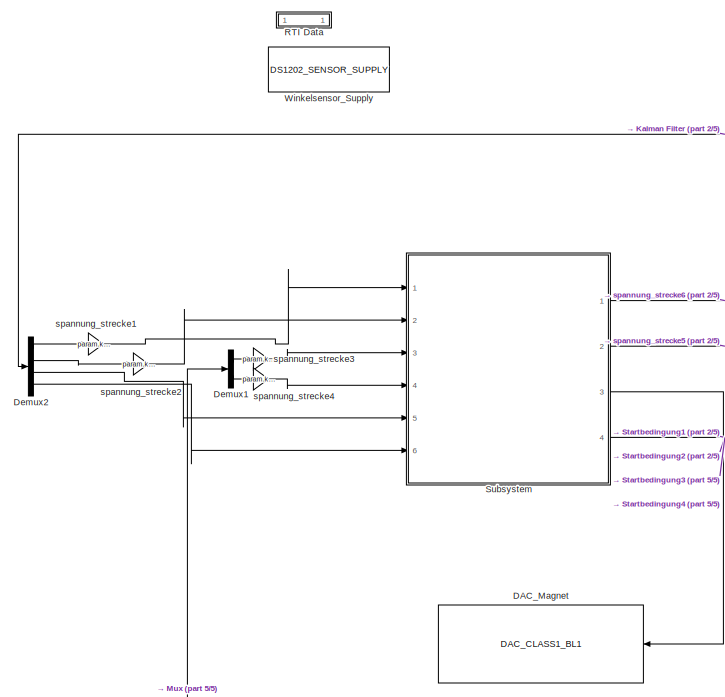
[diagram: root canvas - part 1/5, top left region]
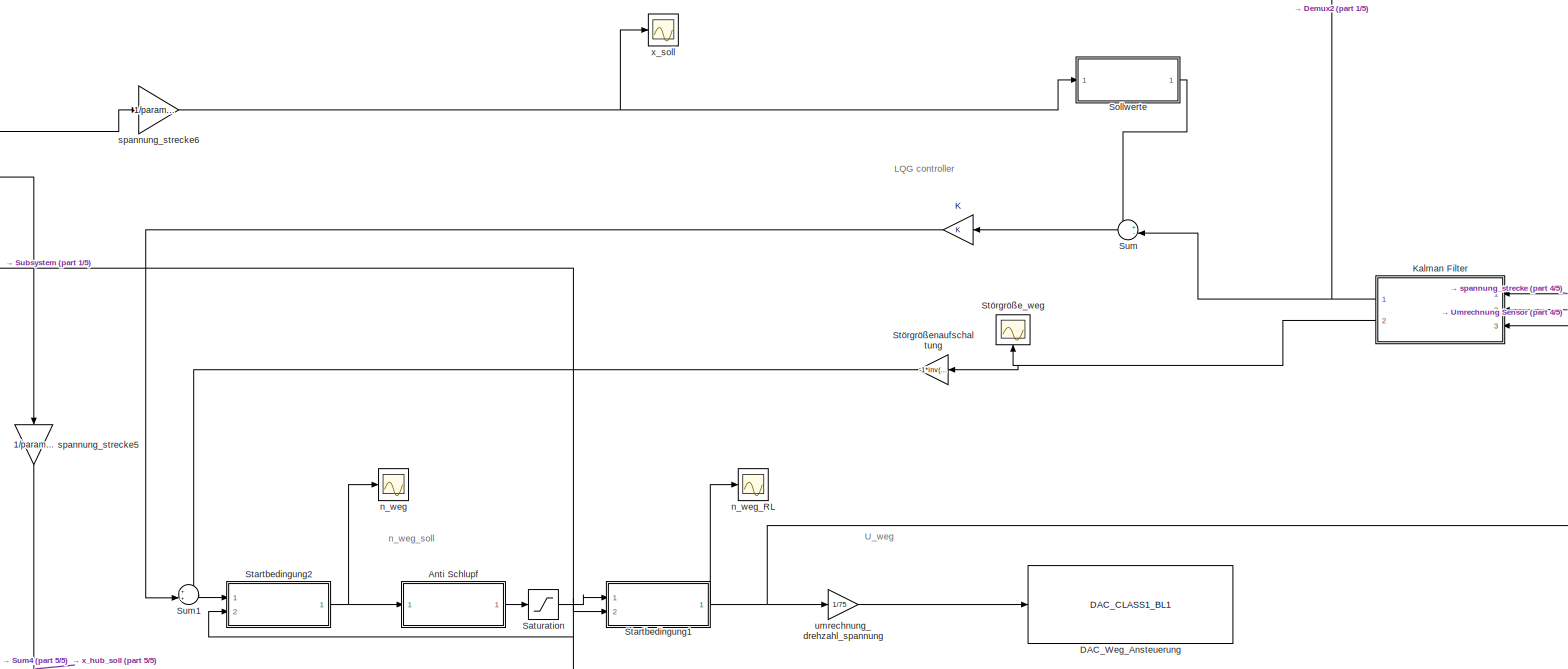
[diagram: root canvas - part 2/5, top center region]
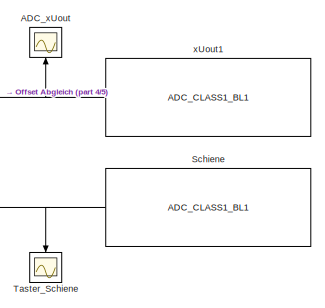
[diagram: root canvas - part 3/5, top right region]
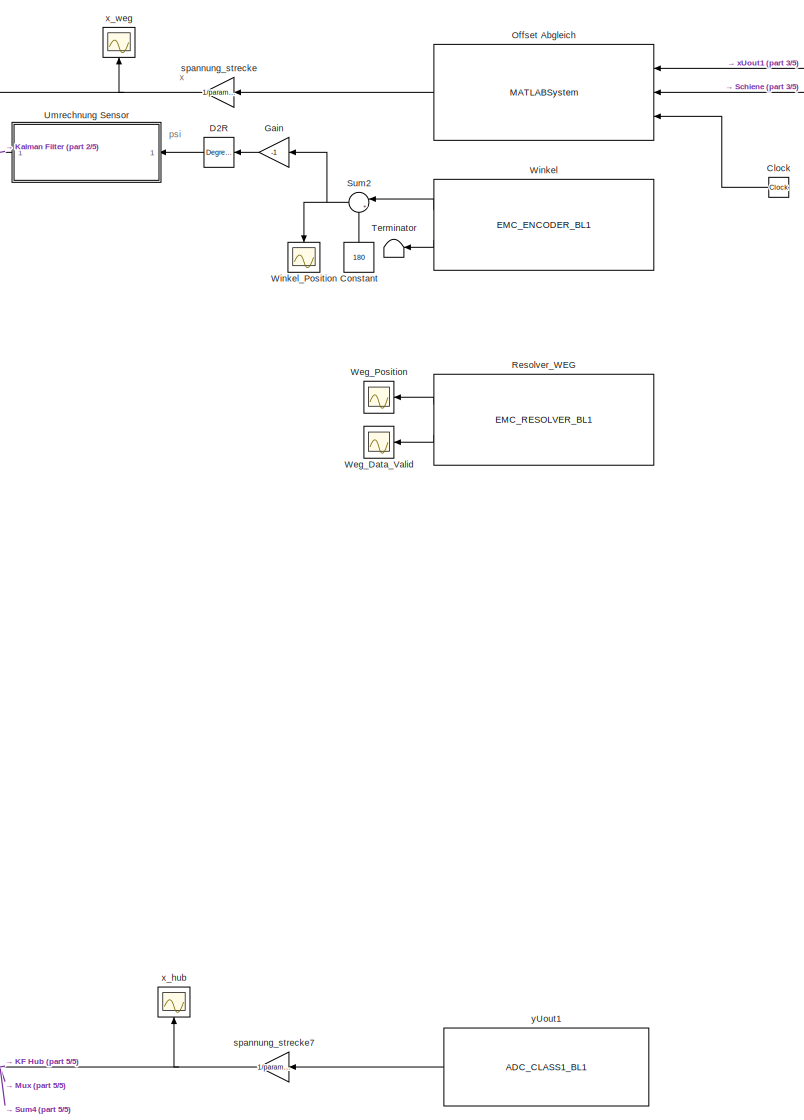
[diagram: root canvas - part 4/5, middle right region]
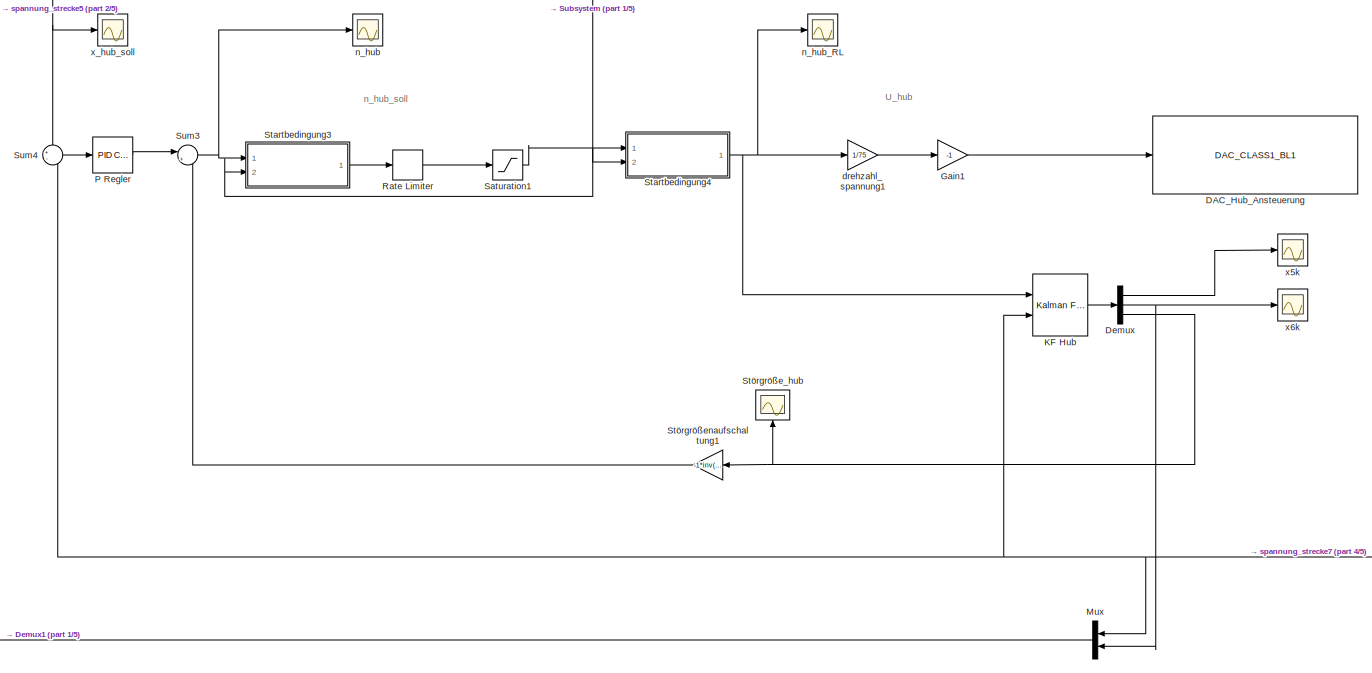
[diagram: root canvas - part 5/5, bottom center region]
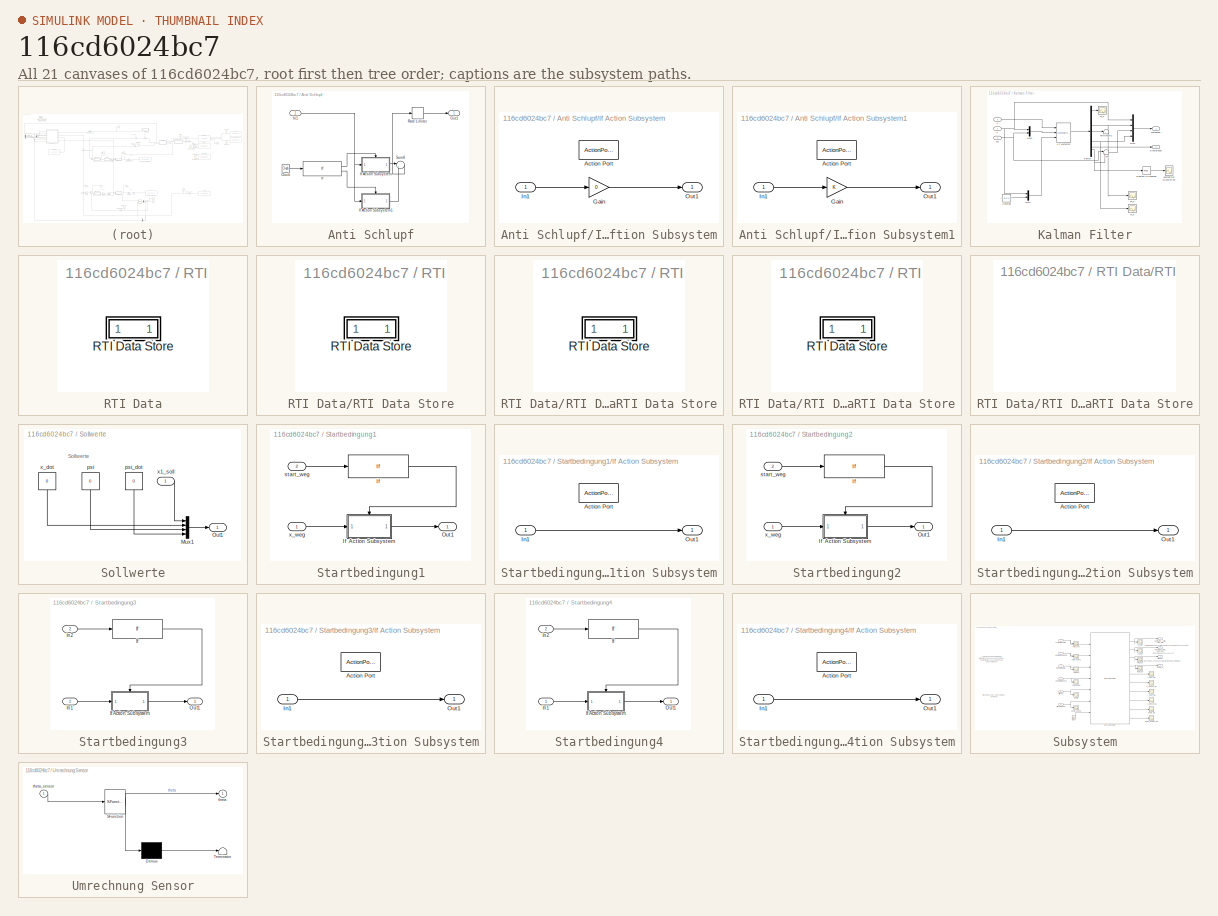
[diagram: thumbnail index - all 21 canvases of the model, root first then tree order]
MODEL slx_116cd6024bc7
KIND model
CONFIG AbsTol = auto
CONFIG EnableMultiTasking = off
CONFIG FixedStep = 0.001
CONFIG MaxStep = auto
CONFIG MinStep = auto
CONFIG PostLoadFcn = , if any(exist('dsrtsu_mdlpostloadfcn', 'file') == [2, 3, 6]), try dsrtsu_mdlpostloadfcn('Execute', bdroot); catch fprintf('Error in PostLoadFcn (dsrtsu_mdlpostloadfcn) for model "%s":\n %s\n', bdroot, lasterr); end, end, \n
CONFIG RelTol = 1e-3
CONFIG SampleTimeConstraint = Unconstrained
CONFIG Solver = ode1
CONFIG SolverName = ode1
CONFIG StartTime = 0.0
CONFIG StopTime = Inf
BLOCK [Scope] ADC_xUout
  NumInputPorts = 1
  Ports = [1]
  ScopeSpecificationString = C++SS(StrPVP('SaveName','ScopeData4'),StrPVP('LimitDataPoints','on'),StrPVP('DataFormat','Array'),StrPVP('Decimation','1'),StrPVP('BlockParamSampleInput','off'),StrPVP('SaveName','ScopeData1'),StrPVP('SaveName','ScopeData1'))
BLOCK [SubSystem] Anti Schlupf
  Ports = [1, 1]
  RequestExecContextInheritance = off
  Variant = off
BLOCK [Clock] Anti Schlupf/Clock
BLOCK [If] Anti Schlupf/If
  IfExpression = u1 < 0.01
  Ports = [1, 2]
BLOCK [SubSystem] Anti Schlupf/If Action Subsystem
  Ports = [1, 1, 0, 0, 0, 0, 0, 1]
  RequestExecContextInheritance = off
  TreatAsAtomicUnit = on
  Variant = off
BLOCK [ActionPort] Anti Schlupf/If Action Subsystem/Action Port
  ActionType = then
BLOCK [Gain] Anti Schlupf/If Action Subsystem/Gain
  Gain = 0
  OutDataTypeStr = Inherit: Inherit via internal rule
  ParamDataTypeStr = Inherit: Inherit via internal rule
  SaturateOnIntegerOverflow = off
BLOCK [Inport] Anti Schlupf/If Action Subsystem/In1
  IconDisplay = Port number
BLOCK [Outport] Anti Schlupf/If Action Subsystem/Out1
  IconDisplay = Port number
BLOCK [SubSystem] Anti Schlupf/If Action Subsystem1
  Ports = [1, 1, 0, 0, 0, 0, 0, 1]
  RequestExecContextInheritance = off
  TreatAsAtomicUnit = on
  Variant = off
BLOCK [ActionPort] Anti Schlupf/If Action Subsystem1/Action Port
  ActionType = else
BLOCK [Gain] Anti Schlupf/If Action Subsystem1/Gain
  OutDataTypeStr = Inherit: Inherit via internal rule
  ParamDataTypeStr = Inherit: Inherit via internal rule
  SaturateOnIntegerOverflow = off
BLOCK [Inport] Anti Schlupf/If Action Subsystem1/In1
  IconDisplay = Port number
BLOCK [Outport] Anti Schlupf/If Action Subsystem1/Out1
  IconDisplay = Port number
BLOCK [Inport] Anti Schlupf/In1
  IconDisplay = Port number
BLOCK [Outport] Anti Schlupf/Out1
  IconDisplay = Port number
BLOCK [RateLimiter] Anti Schlupf/Rate Limiter
  FallingSlewLimit = -9.57
  RisingSlewLimit = 9.57
  SampleTimeMode = inherited
BLOCK [Sum] Anti Schlupf/Sum8
  IconShape = round
  InputSameDT = off
  Inputs = |++
  OutDataTypeStr = Inherit: Inherit via internal rule
  Ports = [2, 1]
  SaturateOnIntegerOverflow = off
BLOCK [Clock] Clock
BLOCK [Constant] Constant
  Value = 180
BLOCK [Reference] D2R  REF=simulink_extras/Transformations/Degrees to
Radians
  Ports = [1, 1]
  SourceBlock = simulink_extras/Transformations/Degrees to\nRadians
  SourceType = DegreesToRadians
BLOCK [Reference] DAC_Hub_Ansteuerung  REF=rti1202lib_dac_class1/DAC_CLASS1_BL1
  Ports = [1]
  SourceBlock = rti1202lib_dac_class1/DAC_CLASS1_BL1
  SourceType = RTI
BLOCK [Reference] DAC_Magnet  REF=rti1202lib_dac_class1/DAC_CLASS1_BL1
  Ports = [1]
  SourceBlock = rti1202lib_dac_class1/DAC_CLASS1_BL1
  SourceType = RTI
BLOCK [Reference] DAC_Weg_Ansteuerung  REF=rti1202lib_dac_class1/DAC_CLASS1_BL1
  Ports = [1]
  SourceBlock = rti1202lib_dac_class1/DAC_CLASS1_BL1
  SourceType = RTI
BLOCK [Demux] Demux
  DisplayOption = bar
  Outputs = 3
  Ports = [1, 3]
BLOCK [Demux] Demux1
  DisplayOption = bar
  Outputs = 2
  Ports = [1, 2]
BLOCK [Demux] Demux2
  DisplayOption = bar
  Ports = [1, 4]
BLOCK [Gain] Gain
  Gain = -1
  OutDataTypeStr = Inherit: Inherit via internal rule
  ParamDataTypeStr = Inherit: Inherit via internal rule
  SaturateOnIntegerOverflow = off
BLOCK [Gain] Gain1
  Gain = -1
  OutDataTypeStr = Inherit: Inherit via internal rule
  ParamDataTypeStr = Inherit: Inherit via internal rule
  SaturateOnIntegerOverflow = off
BLOCK [Gain] K
  Gain = K
  Multiplication = Matrix(K*u) (u vector)
  OutDataTypeStr = Inherit: Inherit via internal rule
  ParamDataTypeStr = Inherit: Inherit via internal rule
  SaturateOnIntegerOverflow = off
BLOCK [Reference] KF Hub  REF=ctrlSharedLib/Kalman Filter
  Ports = [2, 1]
  SourceBlock = ctrlSharedLib/Kalman Filter
  SourceType = ctrlKalmanFilter
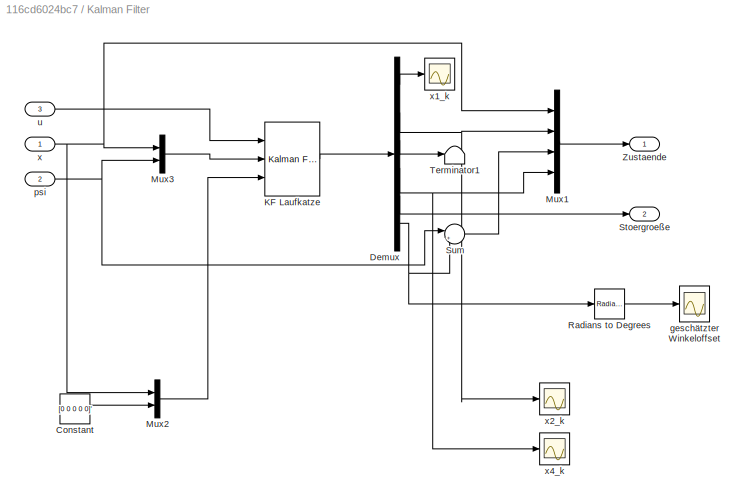
BLOCK [SubSystem] Kalman Filter
  Ports = [3, 2]
  RequestExecContextInheritance = off
  Variant = off
BLOCK [Constant] Kalman Filter/Constant
  Value = [0 0 0 0 0]'
BLOCK [Demux] Kalman Filter/Demux
  DisplayOption = bar
  Outputs = 6
  Ports = [1, 6]
BLOCK [Reference] Kalman Filter/KF Laufkatze  REF=ctrlSharedLib/Kalman Filter
  Ports = [3, 1]
  SourceBlock = ctrlSharedLib/Kalman Filter
  SourceType = ctrlKalmanFilter
BLOCK [Mux] Kalman Filter/Mux1
  DisplayOption = bar
  Ports = [4, 1]
BLOCK [Mux] Kalman Filter/Mux2
  DisplayOption = bar
  Inputs = 2
  Ports = [2, 1]
BLOCK [Mux] Kalman Filter/Mux3
  DisplayOption = bar
  Inputs = 2
  Ports = [2, 1]
BLOCK [Reference] Kalman Filter/Radians to Degrees  REF=simulink_extras/Transformations/Radians
to Degrees
  Ports = [1, 1]
  SourceBlock = simulink_extras/Transformations/Radians\nto Degrees
  SourceType = RadiansToDegrees
BLOCK [Outport] Kalman Filter/Stoergroeße
  IconDisplay = Port number
  Port = 2
BLOCK [Sum] Kalman Filter/Sum
  IconShape = round
  InputSameDT = off
  Inputs = |+-
  OutDataTypeStr = Inherit: Inherit via internal rule
  Ports = [2, 1]
  SaturateOnIntegerOverflow = off
BLOCK [Terminator] Kalman Filter/Terminator1
BLOCK [Outport] Kalman Filter/Zustaende
  IconDisplay = Port number
BLOCK [Scope] Kalman Filter/geschätzter Winkeloffset
  NumInputPorts = 1
  Ports = [1]
  ScopeSpecificationString = Simulink.scopes.TimeScopeBlockCfg('CurrentConfiguration', extmgr.ConfigurationSet(extmgr.Configuration('Core','General UI',true),extmgr.Configuration('Core','Source UI',true),extmgr.Configuration('Sources','WiredSimulink',true,'DataLoggingVariableName','ScopeData1'),extmgr.Configuration('Visuals','Time Domain',true,'SerializedDisplays',{struct('MinYLimReal','-0.34725','MaxYLimReal','3.12526','YLab...<+1429ch>
BLOCK [Inport] Kalman Filter/psi
  IconDisplay = Port number
  Port = 2
BLOCK [Inport] Kalman Filter/u
  IconDisplay = Port number
  Port = 3
BLOCK [Inport] Kalman Filter/x
  IconDisplay = Port number
BLOCK [Scope] Kalman Filter/x1_k 
  NumInputPorts = 1
  Ports = [1]
  ScopeSpecificationString = C++SS(StrPVP('SaveName','ScopeData1'),StrPVP('LimitDataPoints','on'),StrPVP('DataFormat','Array'),StrPVP('Decimation','1'),StrPVP('BlockParamSampleInput','off'))
BLOCK [Scope] Kalman Filter/x2_k
  NumInputPorts = 1
  Ports = [1]
  ScopeSpecificationString = C++SS(StrPVP('SaveName','ScopeData1'),StrPVP('LimitDataPoints','on'),StrPVP('DataFormat','Array'),StrPVP('Decimation','1'),StrPVP('BlockParamSampleInput','off'),StrPVP('SaveName','ScopeData1'))
BLOCK [Scope] Kalman Filter/x4_k
  NumInputPorts = 1
  Ports = [1]
  ScopeSpecificationString = C++SS(StrPVP('SaveName','ScopeData1'),StrPVP('LimitDataPoints','on'),StrPVP('DataFormat','Array'),StrPVP('Decimation','1'),StrPVP('BlockParamSampleInput','off'),StrPVP('SaveName','ScopeData2'))
BLOCK [Mux] Mux
  DisplayOption = bar
  Inputs = 2
  Ports = [2, 1]
BLOCK [MATLABSystem] Offset Abgleich
  MaskDisplay = disp('offset_abgleich');\nport_label('input',1,'input');\nport_label('input',2,'taster');\nport_label('input',3,'clock');\nport_label('output',1,'output');
  MaskType = offset_abgleich
  Ports = [3, 1]
  SimulateUsing = Code generation
  System = offset_abgleich
BLOCK [Reference] P Regler  REF=simulink/Continuous/PID Controller
  Ports = [1, 1]
  SourceBlock = simulink/Continuous/PID Controller
  SourceType = PID 1dof
BLOCK [SubSystem] RTI Data
  CopyFcn = if exist('rtidc'), try,  rtidc('DataHostBlockClbCopy', gcbh); catch, disp(['Warning: ''CopyFcn'' for RTI Data block failed: ' lasterr]); end, end,
  DeleteFcn = if exist('rtidc'), try,  rtidc('DataHostBlockClbDelete', gcbh); catch, disp(['Warning: ''DeleteFcn'' for RTI Data block failed: ' lasterr]); end, end,
  LoadFcn = if exist('rtidc'), try,  rtidc('DataHostBlockClbLoad', gcbh); catch, disp(['Warning: ''LoadFcn'' for RTI Data block failed: ' lasterr]); end, end,
  ModelCloseFcn = if exist('rtidc'), try,  rtidc('DataHostBlockClbModelClose', gcbh); catch, disp(['Warning: ''ModelCloseFcn'' for RTI Data block failed: ' lasterr]); end, end,
  NameChangeFcn = if exist('rtidc'), try,  rtidc('DataHostBlockClbNameChange', gcbh); catch, disp(['Warning: ''NameChangeFcn'' for RTI Data block failed: ' lasterr]); end, end,
  Ports = []
  PostSaveFcn = if exist('rtidc'), try,  rtidc('DataHostBlockClbPostSave', gcbh); catch, disp(['Warning: ''PostSaveFcn'' for RTI Data block failed: ' lasterr]); end, end,
  PreSaveFcn = if exist('rtidc'), try,  rtidc('DataHostBlockClbPreSave', gcbh); catch, disp(['Warning: ''PreSaveFcn'' for RTI Data block failed: ' lasterr]); end, end,
  RequestExecContextInheritance = off
  Tag = struct('RTIDataServer',struct('RTIDataServerVs','2','RTIModelDescription','struct(''main'',''ModellAnlage'',''sub'','''',''isMp'',0)'))
  Variant = off
BLOCK [SubSystem] RTI Data/RTI Data Store
  Ports = []
  RequestExecContextInheritance = off
  Tag = struct('private',struct('version',struct('dsVer',uint32(2),'dsVerCreation',uint32(2),'RTI',struct('ver','7.7','type','RTI1202')),'access',struct('type','Model','isPerm',1,'created',['24-Nov-2020 10:16:32'],'modified',['09-Feb-2021 15:11:09'],'location','')),'public',struct('main',struct('data',[]),'sub',struct('name',{{'ModellAnlage'}},'data',{{struct('TH',struct('thTaskInfo',struct('taskType',{'T...<+889ch>
  Variant = off
BLOCK [SubSystem] RTI Data/RTI Data Store/RTI Data Store
  Ports = []
  RequestExecContextInheritance = off
  Variant = off
BLOCK [SubSystem] RTI Data/RTI Data Store/RTI Data Store/RTI Data Store
  Ports = []
  RequestExecContextInheritance = off
  Variant = off
BLOCK [SubSystem] RTI Data/RTI Data Store/RTI Data Store/RTI Data Store/RTI Data Store
  Ports = []
  RequestExecContextInheritance = off
  Variant = off
BLOCK [RateLimiter] Rate Limiter
  FallingSlewLimit = -17
  RisingSlewLimit = 17
  SampleTimeMode = inherited
BLOCK [Reference] Resolver_WEG  REF=rtiemclib/EMC_RESOLVER_BL1
  Ports = [0, 2]
  SourceBlock = rtiemclib/EMC_RESOLVER_BL1
  SourceType = RTI
BLOCK [Saturate] Saturation
  InputPortMap = u0
  LowerLimit = -75
  Ports = [1, 1]
  UpperLimit = 75
BLOCK [Saturate] Saturation1
  InputPortMap = u0
  LowerLimit = -75
  Ports = [1, 1]
  UpperLimit = 75
BLOCK [Reference] Schiene  REF=rti1202lib_adc_class1/ADC_CLASS1_BL1
  Ports = [0, 1]
  SourceBlock = rti1202lib_adc_class1/ADC_CLASS1_BL1
  SourceType = RTI
BLOCK [SubSystem] Sollwerte
  Ports = [1, 1]
  RequestExecContextInheritance = off
  Variant = off
BLOCK [Mux] Sollwerte/Mux1
  DisplayOption = bar
  Ports = [4, 1]
BLOCK [Outport] Sollwerte/Out1
  IconDisplay = Port number
BLOCK [Constant] Sollwerte/psi
  Value = 0
BLOCK [Constant] Sollwerte/psi_dot
  Value = 0
BLOCK [Inport] Sollwerte/x1_soll
  IconDisplay = Port number
BLOCK [Constant] Sollwerte/x_dot
  Value = 0
BLOCK [SubSystem] Startbedingung1
  Ports = [2, 1]
  RequestExecContextInheritance = off
  Variant = off
BLOCK [If] Startbedingung1/If
  IfExpression = u1 == 1
  Ports = [1, 1]
  ShowElse = off
BLOCK [SubSystem] Startbedingung1/If Action Subsystem
  Ports = [1, 1, 0, 0, 0, 0, 0, 1]
  RequestExecContextInheritance = off
  TreatAsAtomicUnit = on
  Variant = off
BLOCK [ActionPort] Startbedingung1/If Action Subsystem/Action Port
  ActionType = then
  InitializeStates = reset
  PropagateVarSize = During execution
BLOCK [Inport] Startbedingung1/If Action Subsystem/In1
  IconDisplay = Port number
BLOCK [Outport] Startbedingung1/If Action Subsystem/Out1
  IconDisplay = Port number
BLOCK [Outport] Startbedingung1/Out1
  IconDisplay = Port number
BLOCK [Inport] Startbedingung1/start_weg
  IconDisplay = Port number
  Port = 2
BLOCK [Inport] Startbedingung1/x_weg
  IconDisplay = Port number
BLOCK [SubSystem] Startbedingung2
  Ports = [2, 1]
  RequestExecContextInheritance = off
  Variant = off
BLOCK [If] Startbedingung2/If
  IfExpression = u1 == 1
  Ports = [1, 1]
  ShowElse = off
BLOCK [SubSystem] Startbedingung2/If Action Subsystem
  Ports = [1, 1, 0, 0, 0, 0, 0, 1]
  RequestExecContextInheritance = off
  TreatAsAtomicUnit = on
  Variant = off
BLOCK [ActionPort] Startbedingung2/If Action Subsystem/Action Port
  ActionType = then
  InitializeStates = reset
  PropagateVarSize = During execution
BLOCK [Inport] Startbedingung2/If Action Subsystem/In1
  IconDisplay = Port number
BLOCK [Outport] Startbedingung2/If Action Subsystem/Out1
  IconDisplay = Port number
BLOCK [Outport] Startbedingung2/Out1
  IconDisplay = Port number
BLOCK [Inport] Startbedingung2/start_weg
  IconDisplay = Port number
  Port = 2
BLOCK [Inport] Startbedingung2/x_weg
  IconDisplay = Port number
BLOCK [SubSystem] Startbedingung3
  Ports = [2, 1]
  RequestExecContextInheritance = off
  Variant = off
BLOCK [If] Startbedingung3/If
  IfExpression = u1 == 1
  Ports = [1, 1]
  ShowElse = off
BLOCK [SubSystem] Startbedingung3/If Action Subsystem
  Ports = [1, 1, 0, 0, 0, 0, 0, 1]
  RequestExecContextInheritance = off
  TreatAsAtomicUnit = on
  Variant = off
BLOCK [ActionPort] Startbedingung3/If Action Subsystem/Action Port
  ActionType = then
BLOCK [Inport] Startbedingung3/If Action Subsystem/In1
  IconDisplay = Port number
BLOCK [Outport] Startbedingung3/If Action Subsystem/Out1
  IconDisplay = Port number
BLOCK [Inport] Startbedingung3/In1
  IconDisplay = Port number
BLOCK [Inport] Startbedingung3/In2
  IconDisplay = Port number
  Port = 2
BLOCK [Outport] Startbedingung3/Out1
  IconDisplay = Port number
BLOCK [SubSystem] Startbedingung4
  Ports = [2, 1]
  RequestExecContextInheritance = off
  Variant = off
BLOCK [If] Startbedingung4/If
  IfExpression = u1 == 1
  Ports = [1, 1]
  ShowElse = off
BLOCK [SubSystem] Startbedingung4/If Action Subsystem
  Ports = [1, 1, 0, 0, 0, 0, 0, 1]
  RequestExecContextInheritance = off
  TreatAsAtomicUnit = on
  Variant = off
BLOCK [ActionPort] Startbedingung4/If Action Subsystem/Action Port
  ActionType = then
BLOCK [Inport] Startbedingung4/If Action Subsystem/In1
  IconDisplay = Port number
BLOCK [Outport] Startbedingung4/If Action Subsystem/Out1
  IconDisplay = Port number
BLOCK [Inport] Startbedingung4/In1
  IconDisplay = Port number
BLOCK [Inport] Startbedingung4/In2
  IconDisplay = Port number
  Port = 2
BLOCK [Outport] Startbedingung4/Out1
  IconDisplay = Port number
BLOCK [Scope] Störgröße_hub
  NumInputPorts = 1
  Ports = [1]
  ScopeSpecificationString = Simulink.scopes.TimeScopeBlockCfg('CurrentConfiguration', extmgr.ConfigurationSet(extmgr.Configuration('Core','General UI',true),extmgr.Configuration('Core','Source UI',true),extmgr.Configuration('Sources','WiredSimulink',true,'DataLoggingVariableName','ScopeData6','DataLoggingLimitDataPoints',true,'DataLoggingSaveFormat','Array','DataLoggingDecimation','1','DataLoggingDecimateData',true),extmgr.C...<+1499ch>
BLOCK [Scope] Störgröße_weg
  NumInputPorts = 1
  Ports = [1]
  ScopeSpecificationString = Simulink.scopes.TimeScopeBlockCfg('CurrentConfiguration', extmgr.ConfigurationSet(extmgr.Configuration('Core','General UI',true),extmgr.Configuration('Core','Source UI',true),extmgr.Configuration('Sources','WiredSimulink',true,'DataLoggingVariableName','ScopeData2'),extmgr.Configuration('Visuals','Time Domain',true,'SerializedDisplays',{struct('MinYLimReal','-1.36617','MaxYLimReal','8.79931','YLab...<+1386ch>
BLOCK [Gain] Störgrößenaufschaltung
  Gain = -1*inv(B1'*B1)*B1'*E1
  Multiplication = Matrix(K*u)
  OutDataTypeStr = Inherit: Inherit via internal rule
  ParamDataTypeStr = Inherit: Inherit via internal rule
  SaturateOnIntegerOverflow = off
BLOCK [Gain] Störgrößenaufschaltung1
  Gain = -1*inv(B2'*B2)*B2'*E2
  Multiplication = Matrix(K*u)
  OutDataTypeStr = Inherit: Inherit via internal rule
  ParamDataTypeStr = Inherit: Inherit via internal rule
  SaturateOnIntegerOverflow = off
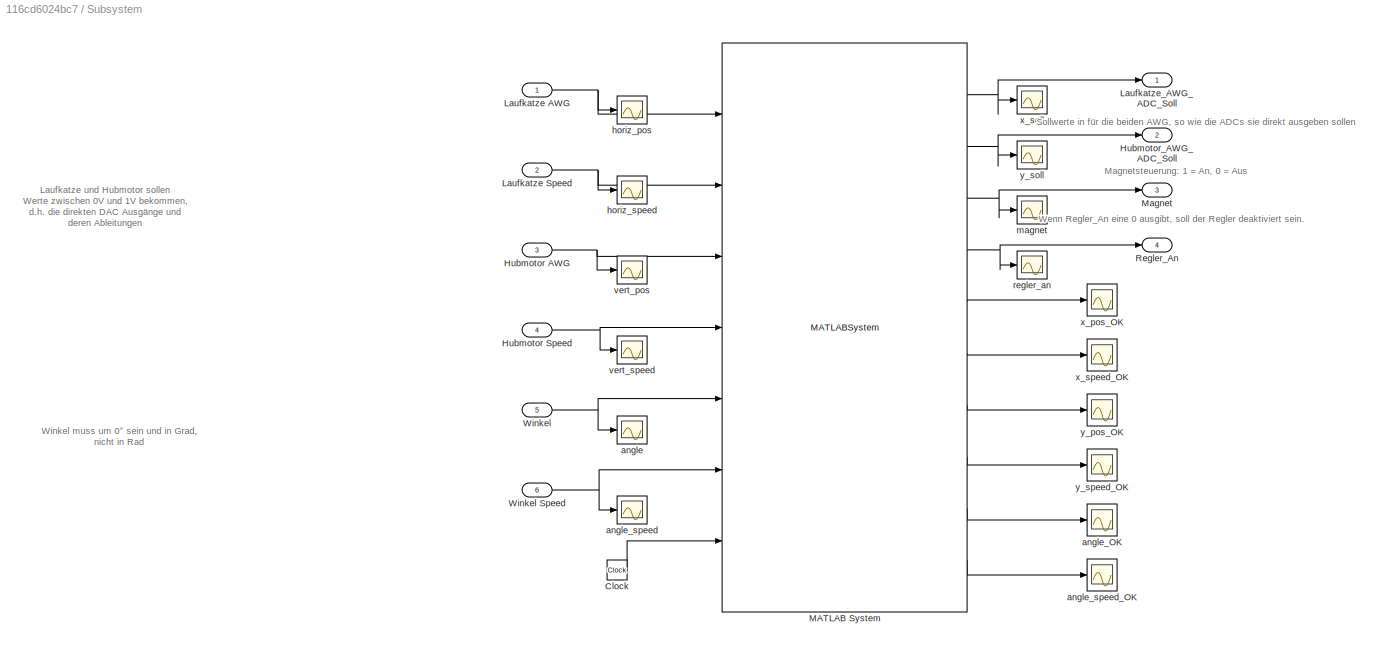
BLOCK [SubSystem] Subsystem
  Ports = [6, 4]
  RequestExecContextInheritance = off
  Variant = off
BLOCK [Clock] Subsystem/Clock
BLOCK [Inport] Subsystem/Hubmotor AWG
  IconDisplay = Port number
  OutDataTypeStr = double
  OutMax = 1
  OutMin = 0
  Port = 3
  PortDimensions = 1
  SignalType = real
BLOCK [Inport] Subsystem/Hubmotor Speed
  IconDisplay = Port number
  OutDataTypeStr = double
  Port = 4
  SignalType = real
BLOCK [Outport] Subsystem/Hubmotor_AWG_ADC_Soll
  IconDisplay = Port number
  Port = 2
BLOCK [Inport] Subsystem/Laufkatze AWG
  IconDisplay = Port number
  OutDataTypeStr = double
  OutMax = 1
  OutMin = 0
  PortDimensions = 1
  SignalType = real
BLOCK [Inport] Subsystem/Laufkatze Speed
  IconDisplay = Port number
  OutDataTypeStr = double
  Port = 2
  SignalType = real
BLOCK [Outport] Subsystem/Laufkatze_AWG_ADC_Soll
  IconDisplay = Port number
BLOCK [MATLABSystem] Subsystem/MATLAB System
  MaskDisplay = disp('Steuerung_Automatisierung');\nport_label('input',1,'horiz_pos');\nport_label('input',2,'horiz_speed');\nport_label('input',3,'vert_pos');\nport_label('input',4,'vert_speed');\nport_label('input',5,'angle');\nport_label('input',6,'angle_speed');\nport_label('input',7,'Clock');\nport_label('output',1,'horiz_setpoint');\nport_label('output',2,'vert_setpoint');\nport_label('output',3,'magnet_on');\nport_la...<+300ch>
  MaskType = Steuerung_Automatisierung
  Ports = [7, 10]
  SimulateUsing = Code generation
  System = Steuerung_Automatisierung
  add_midpoints = true
  midpoint_height = 35
  param = param
  start_time = 20
BLOCK [Outport] Subsystem/Magnet
  IconDisplay = Port number
  Port = 3
BLOCK [Outport] Subsystem/Regler_An
  IconDisplay = Port number
  Port = 4
BLOCK [Inport] Subsystem/Winkel
  IconDisplay = Port number
  OutDataTypeStr = double
  OutMax = 360
  OutMin = 0
  Port = 5
  PortDimensions = 1
  SignalType = real
BLOCK [Inport] Subsystem/Winkel  Speed
  IconDisplay = Port number
  OutDataTypeStr = double
  Port = 6
  SignalType = real
BLOCK [Scope] Subsystem/angle
  NumInputPorts = 1
  Ports = [1]
  ScopeSpecificationString = C++SS(StrPVP('SaveName','ScopeData'),StrPVP('SaveName','ScopeData10'),StrPVP('SaveName','ScopeData12'),StrPVP('SaveName','ScopeData14'),StrPVP('LimitDataPoints','on'),StrPVP('DataFormat','Array'),StrPVP('Decimation','1'),StrPVP('BlockParamSampleInput','off'),StrPVP('SaveName','ScopeData2'))
BLOCK [Scope] Subsystem/angle_OK
  NumInputPorts = 1
  Ports = [1]
  ScopeSpecificationString = C++SS(StrPVP('SaveName','ScopeData3'),StrPVP('LimitDataPoints','on'),StrPVP('DataFormat','Array'),StrPVP('Decimation','1'),StrPVP('BlockParamSampleInput','off'))
BLOCK [Scope] Subsystem/angle_speed
  NumInputPorts = 1
  Ports = [1]
  ScopeSpecificationString = C++SS(StrPVP('SaveName','ScopeData'),StrPVP('SaveName','ScopeData10'),StrPVP('SaveName','ScopeData12'),StrPVP('SaveName','ScopeData14'),StrPVP('SaveName','ScopeData15'),StrPVP('LimitDataPoints','on'),StrPVP('DataFormat','Array'),StrPVP('Decimation','1'),StrPVP('BlockParamSampleInput','off'),StrPVP('SaveName','ScopeData4'))
BLOCK [Scope] Subsystem/angle_speed_OK
  NumInputPorts = 1
  Ports = [1]
  ScopeSpecificationString = C++SS(StrPVP('SaveName','ScopeData9'),StrPVP('LimitDataPoints','on'),StrPVP('DataFormat','Array'),StrPVP('Decimation','1'),StrPVP('BlockParamSampleInput','off'),StrPVP('SaveName','ScopeData5'))
BLOCK [Scope] Subsystem/horiz_pos
  NumInputPorts = 1
  Ports = [1]
  ScopeSpecificationString = Simulink.scopes.TimeScopeBlockCfg('CurrentConfiguration', extmgr.ConfigurationSet(extmgr.Configuration('Core','General UI',true),extmgr.Configuration('Core','Source UI',true),extmgr.Configuration('Sources','WiredSimulink',true,'DataLoggingVariableName','ScopeData10','DataLoggingLimitDataPoints',true,'DataLoggingSaveFormat','Array','DataLoggingDecimation','1','DataLoggingDecimateData',true),extmgr....<+1464ch>
BLOCK [Scope] Subsystem/horiz_speed
  NumInputPorts = 1
  Ports = [1]
  ScopeSpecificationString = C++SS(StrPVP('SaveName','ScopeData'),StrPVP('SaveName','ScopeData10'),StrPVP('SaveName','ScopeData11'),StrPVP('LimitDataPoints','on'),StrPVP('DataFormat','Array'),StrPVP('Decimation','1'),StrPVP('BlockParamSampleInput','off'),StrPVP('SaveName','ScopeData6'))
BLOCK [Scope] Subsystem/magnet
  NumInputPorts = 1
  Ports = [1]
  ScopeSpecificationString = C++SS(StrPVP('SaveName','ScopeData7'),StrPVP('LimitDataPoints','on'),StrPVP('DataFormat','Array'),StrPVP('Decimation','1'),StrPVP('BlockParamSampleInput','off'))
BLOCK [Scope] Subsystem/regler_an
  NumInputPorts = 1
  Ports = [1]
  ScopeSpecificationString = C++SS(StrPVP('SaveName','ScopeData'),StrPVP('SaveName','ScopeData1'),StrPVP('SaveName','ScopeData2'),StrPVP('SaveName','ScopeData3'),StrPVP('LimitDataPoints','on'),StrPVP('DataFormat','Array'),StrPVP('Decimation','1'),StrPVP('BlockParamSampleInput','off'),StrPVP('SaveName','ScopeData8'))
BLOCK [Scope] Subsystem/vert_pos
  NumInputPorts = 1
  Ports = [1]
  ScopeSpecificationString = Simulink.scopes.TimeScopeBlockCfg('CurrentConfiguration', extmgr.ConfigurationSet(extmgr.Configuration('Core','General UI',true),extmgr.Configuration('Core','Source UI',true),extmgr.Configuration('Sources','WiredSimulink',true,'DataLoggingVariableName','ScopeData9','DataLoggingLimitDataPoints',true,'DataLoggingSaveFormat','Array','DataLoggingDecimation','1','DataLoggingDecimateData',true),extmgr.C...<+1523ch>
BLOCK [Scope] Subsystem/vert_speed
  NumInputPorts = 1
  Ports = [1]
  ScopeSpecificationString = C++SS(StrPVP('SaveName','ScopeData'),StrPVP('SaveName','ScopeData10'),StrPVP('SaveName','ScopeData12'),StrPVP('SaveName','ScopeData13'),StrPVP('LimitDataPoints','on'),StrPVP('DataFormat','Array'),StrPVP('Decimation','1'),StrPVP('BlockParamSampleInput','off'),StrPVP('SaveName','ScopeData11'))
BLOCK [Scope] Subsystem/x_pos_OK
  NumInputPorts = 1
  Ports = [1]
  ScopeSpecificationString = Simulink.scopes.TimeScopeBlockCfg('CurrentConfiguration', extmgr.ConfigurationSet(extmgr.Configuration('Core','General UI',true),extmgr.Configuration('Core','Source UI',true),extmgr.Configuration('Sources','WiredSimulink',true,'DataLoggingVariableName','ScopeData12'),extmgr.Configuration('Visuals','Time Domain',true,'SerializedDisplays',{struct('MinYLimReal','-0.125','MaxYLimReal','1.125','YLabelR...<+1392ch>
BLOCK [Scope] Subsystem/x_soll
  NumInputPorts = 1
  Ports = [1]
  ScopeSpecificationString = C++SS(StrPVP('SaveName','ScopeData'),StrPVP('LimitDataPoints','on'),StrPVP('DataFormat','Array'),StrPVP('Decimation','1'),StrPVP('BlockParamSampleInput','off'),StrPVP('SaveName','ScopeData13'))
BLOCK [Scope] Subsystem/x_speed_OK
  NumInputPorts = 1
  Ports = [1]
  ScopeSpecificationString = C++SS(StrPVP('SaveName','ScopeData14'),StrPVP('LimitDataPoints','on'),StrPVP('DataFormat','Array'),StrPVP('Decimation','1'),StrPVP('BlockParamSampleInput','off'))
BLOCK [Scope] Subsystem/y_pos_OK
  NumInputPorts = 1
  Ports = [1]
  ScopeSpecificationString = C++SS(StrPVP('SaveName','ScopeData15'),StrPVP('LimitDataPoints','on'),StrPVP('DataFormat','Array'),StrPVP('Decimation','1'),StrPVP('BlockParamSampleInput','off'))
BLOCK [Scope] Subsystem/y_soll
  NumInputPorts = 1
  Ports = [1]
  ScopeSpecificationString = C++SS(StrPVP('SaveName','ScopeData'),StrPVP('SaveName','ScopeData1'),StrPVP('LimitDataPoints','on'),StrPVP('DataFormat','Array'),StrPVP('Decimation','1'),StrPVP('BlockParamSampleInput','off'),StrPVP('SaveName','ScopeData16'))
BLOCK [Scope] Subsystem/y_speed_OK
  NumInputPorts = 1
  Ports = [1]
  ScopeSpecificationString = C++SS(StrPVP('SaveName','ScopeData7'),StrPVP('LimitDataPoints','on'),StrPVP('DataFormat','Array'),StrPVP('Decimation','1'),StrPVP('BlockParamSampleInput','off'),StrPVP('SaveName','ScopeData17'))
BLOCK [Sum] Sum
  IconShape = round
  InputSameDT = off
  Inputs = +-|
  OutDataTypeStr = Inherit: Inherit via internal rule
  Ports = [2, 1]
  SaturateOnIntegerOverflow = off
BLOCK [Sum] Sum1
  IconShape = round
  InputSameDT = off
  Inputs = ++|
  OutDataTypeStr = Inherit: Inherit via internal rule
  Ports = [2, 1]
  SaturateOnIntegerOverflow = off
BLOCK [Sum] Sum2
  IconShape = round
  InputSameDT = off
  Inputs = |+-
  OutDataTypeStr = Inherit: Inherit via internal rule
  Ports = [2, 1]
  SaturateOnIntegerOverflow = off
BLOCK [Sum] Sum3
  IconShape = round
  InputSameDT = off
  Inputs = |++
  OutDataTypeStr = Inherit: Inherit via internal rule
  Ports = [2, 1]
  SaturateOnIntegerOverflow = off
BLOCK [Sum] Sum4
  IconShape = round
  InputSameDT = off
  Inputs = +-
  OutDataTypeStr = Inherit: Inherit via internal rule
  Ports = [2, 1]
  SaturateOnIntegerOverflow = off
BLOCK [Scope] Taster_Schiene
  NumInputPorts = 1
  Ports = [1]
  ScopeSpecificationString = C++SS(StrPVP('SaveName','ScopeData'),StrPVP('SaveName','ScopeData2'),StrPVP('LimitDataPoints','on'),StrPVP('DataFormat','Array'),StrPVP('Decimation','1'),StrPVP('BlockParamSampleInput','off'),StrPVP('SaveName','ScopeData1'),StrPVP('SaveName','ScopeData10'),StrPVP('SaveName','ScopeData2'))
BLOCK [Terminator] Terminator
BLOCK [SubSystem] Umrechnung Sensor
  ErrorFcn = Stateflow.Translate.translate
  PermitHierarchicalResolution = ExplicitOnly
  Ports = [1, 1]
  RequestExecContextInheritance = off
  SFBlockType = MATLAB Function
  TreatAsAtomicUnit = on
  Variant = off
BLOCK [Demux] Umrechnung Sensor/ Demux 
  Outputs = 1
  Ports = [1, 1]
BLOCK [S-Function] Umrechnung Sensor/ SFunction 
  EnableBusSupport = on
  FunctionName = sf_sfun
  PortCounts = [1 2]
  Ports = [1, 2]
  SFcnIsStateOwnerBlock = off
  SFunctionDeploymentMode = off
  Tag = Stateflow S-Function RiccatiRegler_Anlage 2
BLOCK [Terminator] Umrechnung Sensor/ Terminator 
BLOCK [Outport] Umrechnung Sensor/theta
  IconDisplay = Port number
BLOCK [Inport] Umrechnung Sensor/theta_sensor
  IconDisplay = Port number
BLOCK [Scope] Weg_Data_Valid
  NumInputPorts = 1
  Ports = [1]
  ScopeSpecificationString = C++SS(StrPVP('SaveName','ScopeData'),StrPVP('SaveName','ScopeData3'),StrPVP('LimitDataPoints','on'),StrPVP('DataFormat','Array'),StrPVP('Decimation','1'),StrPVP('BlockParamSampleInput','off'),StrPVP('SaveName','ScopeData4'),StrPVP('SaveName','ScopeData1'),StrPVP('SaveName','ScopeData6'))
BLOCK [Scope] Weg_Position
  NumInputPorts = 1
  Ports = [1]
  ScopeSpecificationString = C++SS(StrPVP('SaveName','ScopeData'),StrPVP('SaveName','ScopeData3'),StrPVP('LimitDataPoints','on'),StrPVP('DataFormat','Array'),StrPVP('Decimation','1'),StrPVP('BlockParamSampleInput','off'),StrPVP('SaveName','ScopeData1'),StrPVP('SaveName','ScopeData5'),StrPVP('SaveName','ScopeData2'),StrPVP('SaveName','ScopeData'))
BLOCK [Reference] Winkel  REF=rtiemclib/EMC_ENCODER_BL1
  Ports = [0, 2]
  SourceBlock = rtiemclib/EMC_ENCODER_BL1
  SourceType = RTI
BLOCK [Scope] Winkel_Position
  NumInputPorts = 1
  Ports = [1]
  ScopeSpecificationString = Simulink.scopes.TimeScopeBlockCfg('CurrentConfiguration', extmgr.ConfigurationSet(extmgr.Configuration('Core','General UI',true),extmgr.Configuration('Core','Source UI',true),extmgr.Configuration('Sources','WiredSimulink',true,'DataLoggingVariableName','ScopeData4','DataLoggingLimitDataPoints',true,'DataLoggingSaveFormat','Array','DataLoggingDecimation','1','DataLoggingDecimateData',true),extmgr.C...<+183ch>
BLOCK [Reference] Winkelsensor_Supply  REF=rti1202lib_base/DS1202_SENSOR_SUPPLY
  Ports = []
  SourceBlock = rti1202lib_base/DS1202_SENSOR_SUPPLY
  SourceType = RTI
BLOCK [Gain] drehzahl_spannung1
  Gain = 1/75
  OutDataTypeStr = Inherit: Inherit via internal rule
  ParamDataTypeStr = Inherit: Inherit via internal rule
  SaturateOnIntegerOverflow = off
BLOCK [Scope] n_hub
  NumInputPorts = 1
  Ports = [1]
  ScopeSpecificationString = C++SS(StrPVP('SaveName','ScopeData4'),StrPVP('LimitDataPoints','on'),StrPVP('DataFormat','Array'),StrPVP('Decimation','1'),StrPVP('BlockParamSampleInput','off'))
BLOCK [Scope] n_hub_RL
  NumInputPorts = 1
  Ports = [1]
  ScopeSpecificationString = C++SS(StrPVP('SaveName','ScopeData5'),StrPVP('SaveName','ScopeData5'),StrPVP('LimitDataPoints','on'),StrPVP('DataFormat','Array'),StrPVP('Decimation','1'),StrPVP('BlockParamSampleInput','off'))
BLOCK [Scope] n_weg
  NumInputPorts = 1
  Ports = [1]
  ScopeSpecificationString = C++SS(StrPVP('SaveName','ScopeData1'),StrPVP('LimitDataPoints','on'),StrPVP('DataFormat','Array'),StrPVP('Decimation','1'),StrPVP('BlockParamSampleInput','off'))
BLOCK [Scope] n_weg_RL
  NumInputPorts = 1
  Ports = [1]
  ScopeSpecificationString = Simulink.scopes.TimeScopeBlockCfg('CurrentConfiguration', extmgr.ConfigurationSet(extmgr.Configuration('Core','General UI',true),extmgr.Configuration('Core','Source UI',true),extmgr.Configuration('Sources','WiredSimulink',true,'DataLoggingVariableName','ScopeData7','DataLoggingLimitDataPoints',true,'DataLoggingSaveFormat','Array','DataLoggingDecimation','1','DataLoggingDecimateData',true),extmgr.C...<+183ch>
BLOCK [Gain] spannung_strecke
  Gain = 1/param.k_AWG_K
  OutDataTypeStr = Inherit: Inherit via internal rule
  ParamDataTypeStr = Inherit: Inherit via internal rule
  SaturateOnIntegerOverflow = off
BLOCK [Gain] spannung_strecke1
  Gain = param.k_AWG_K
  OutDataTypeStr = Inherit: Inherit via internal rule
  ParamDataTypeStr = Inherit: Inherit via internal rule
  SaturateOnIntegerOverflow = off
BLOCK [Gain] spannung_strecke2
  Gain = param.k_AWG_K
  OutDataTypeStr = Inherit: Inherit via internal rule
  ParamDataTypeStr = Inherit: Inherit via internal rule
  SaturateOnIntegerOverflow = off
BLOCK [Gain] spannung_strecke3
  Gain = param.k_AWG_G
  OutDataTypeStr = Inherit: Inherit via internal rule
  ParamDataTypeStr = Inherit: Inherit via internal rule
  SaturateOnIntegerOverflow = off
BLOCK [Gain] spannung_strecke4
  Gain = param.k_AWG_G
  OutDataTypeStr = Inherit: Inherit via internal rule
  ParamDataTypeStr = Inherit: Inherit via internal rule
  SaturateOnIntegerOverflow = off
BLOCK [Gain] spannung_strecke5
  Gain = 1/param.k_AWG_G
  OutDataTypeStr = Inherit: Inherit via internal rule
  ParamDataTypeStr = Inherit: Inherit via internal rule
  SaturateOnIntegerOverflow = off
BLOCK [Gain] spannung_strecke6
  Gain = 1/param.k_AWG_K
  OutDataTypeStr = Inherit: Inherit via internal rule
  ParamDataTypeStr = Inherit: Inherit via internal rule
  SaturateOnIntegerOverflow = off
BLOCK [Gain] spannung_strecke7
  Gain = 1/param.k_AWG_G
  OutDataTypeStr = Inherit: Inherit via internal rule
  ParamDataTypeStr = Inherit: Inherit via internal rule
  SaturateOnIntegerOverflow = off
BLOCK [Gain] umrechnung_drehzahl_spannung
  Gain = 1/75
  OutDataTypeStr = Inherit: Inherit via internal rule
  ParamDataTypeStr = Inherit: Inherit via internal rule
  SaturateOnIntegerOverflow = off
BLOCK [Scope] x5k
  NumInputPorts = 1
  Ports = [1]
  ScopeSpecificationString = C++SS(StrPVP('SaveName','ScopeData2'),StrPVP('LimitDataPoints','on'),StrPVP('DataFormat','Array'),StrPVP('Decimation','1'),StrPVP('BlockParamSampleInput','off'))
BLOCK [Scope] x6k
  NumInputPorts = 1
  Ports = [1]
  ScopeSpecificationString = C++SS(StrPVP('SaveName','ScopeData3'),StrPVP('LimitDataPoints','on'),StrPVP('DataFormat','Array'),StrPVP('Decimation','1'),StrPVP('BlockParamSampleInput','off'))
BLOCK [Reference] xUout1  REF=rti1202lib_adc_class1/ADC_CLASS1_BL1
  Ports = [0, 1]
  SourceBlock = rti1202lib_adc_class1/ADC_CLASS1_BL1
  SourceType = RTI
BLOCK [Scope] x_hub
  NumInputPorts = 1
  Ports = [1]
  ScopeSpecificationString = C++SS(StrPVP('SaveName','ScopeData5'),StrPVP('LimitDataPoints','on'),StrPVP('DataFormat','Array'),StrPVP('Decimation','1'),StrPVP('BlockParamSampleInput','off'),StrPVP('SaveName','ScopeData7'),StrPVP('SaveName','ScopeData3'))
BLOCK [Scope] x_hub_soll
  NumInputPorts = 1
  Ports = [1]
  ScopeSpecificationString = C++SS(StrPVP('SaveName','ScopeData1'),StrPVP('LimitDataPoints','on'),StrPVP('DataFormat','Array'),StrPVP('Decimation','1'),StrPVP('BlockParamSampleInput','off'))
BLOCK [Scope] x_soll 
  NumInputPorts = 1
  Ports = [1]
  ScopeSpecificationString = Simulink.scopes.TimeScopeBlockCfg('CurrentConfiguration', extmgr.ConfigurationSet(extmgr.Configuration('Core','General UI',true),extmgr.Configuration('Core','Source UI',true),extmgr.Configuration('Sources','WiredSimulink',true,'DataLoggingVariableName','ScopeData1','DataLoggingLimitDataPoints',true,'DataLoggingSaveFormat','Array','DataLoggingDecimation','1','DataLoggingDecimateData',true),extmgr.C...<+183ch>
BLOCK [Scope] x_weg
  NumInputPorts = 1
  Ports = [1]
  ScopeSpecificationString = C++SS(StrPVP('SaveName','ScopeData5'),StrPVP('LimitDataPoints','on'),StrPVP('DataFormat','Array'),StrPVP('Decimation','1'),StrPVP('BlockParamSampleInput','off'),StrPVP('SaveName','ScopeData2'))
BLOCK [Reference] yUout1  REF=rti1202lib_adc_class1/ADC_CLASS1_BL1
  Ports = [0, 1]
  SourceBlock = rti1202lib_adc_class1/ADC_CLASS1_BL1
  SourceType = RTI
ANNOTATION (root): LQG controller
ANNOTATION (root): U_hub
ANNOTATION (root): U_weg
ANNOTATION (root): n_hub_soll
ANNOTATION (root): n_weg_soll
ANNOTATION (root): psi
ANNOTATION (root): x
ANNOTATION Sollwerte: Sollwerte
ANNOTATION Subsystem: Winkel muss um 0° sein und in Grad, nicht in Rad
ANNOTATION Subsystem: Laufkatze und Hubmotor sollen Werte zwischen 0V und 1V bekommen, d.h. die direkten DAC Ausgänge und deren Ableitungen
ANNOTATION Subsystem: Magnetsteuerung: 1 = An, 0 = Aus
ANNOTATION Subsystem: Sollwerte in für die beiden AWG, so wie die ADCs sie direkt ausgeben sollen
ANNOTATION Subsystem: Wenn Regler_An eine 0 ausgibt, soll der Regler deaktiviert sein.
LINE Anti Schlupf/Clock:1 -> Anti Schlupf/If:1
LINE Anti Schlupf/If Action Subsystem/Gain:1 -> Anti Schlupf/If Action Subsystem/Out1:1
LINE Anti Schlupf/If Action Subsystem/In1:1 -> Anti Schlupf/If Action Subsystem/Gain:1
LINE Anti Schlupf/If Action Subsystem1/Gain:1 -> Anti Schlupf/If Action Subsystem1/Out1:1
LINE Anti Schlupf/If Action Subsystem1/In1:1 -> Anti Schlupf/If Action Subsystem1/Gain:1
LINE Anti Schlupf/If Action Subsystem1:1 -> Anti Schlupf/Sum8:2
LINE Anti Schlupf/If Action Subsystem:1 -> Anti Schlupf/Sum8:1
LINE Anti Schlupf/If:1 -> Anti Schlupf/If Action Subsystem:ifaction
LINE Anti Schlupf/If:2 -> Anti Schlupf/If Action Subsystem1:ifaction
NET Anti Schlupf/In1:1 -> Anti Schlupf/If Action Subsystem1:1, Anti Schlupf/If Action Subsystem:1
LINE Anti Schlupf/Rate Limiter:1 -> Anti Schlupf/Out1:1
LINE Anti Schlupf/Sum8:1 -> Anti Schlupf/Rate Limiter:1
LINE Anti Schlupf:1 -> Saturation:1
LINE Clock:1 -> Offset Abgleich:3
LINE Constant:1 -> Sum2:2
LINE D2R:1 -> Umrechnung Sensor:1
LINE Demux1:1 -> spannung_strecke3:1
LINE Demux1:2 -> spannung_strecke4:1
LINE Demux2:1 -> spannung_strecke1:1
LINE Demux2:2 -> spannung_strecke2:1
LINE Demux2:3 -> Subsystem:5
LINE Demux2:4 -> Subsystem:6
LINE Demux:1 -> x5k:1
NET Demux:2 -> Mux:2, x6k:1
NET Demux:3 -> Störgröße_hub:1, Störgrößenaufschaltung1:1
LINE Gain1:1 -> DAC_Hub_Ansteuerung:1
LINE Gain:1 -> D2R:1
LINE K:1 -> Sum1:2
LINE KF Hub:1 -> Demux:1
LINE Kalman Filter/Constant:1 -> Kalman Filter/Mux2:2
LINE Kalman Filter/Demux:1 -> Kalman Filter/x1_k :1
NET Kalman Filter/Demux:2 -> Kalman Filter/Mux1:2, Kalman Filter/x2_k:1
LINE Kalman Filter/Demux:3 -> Kalman Filter/Terminator1:1
NET Kalman Filter/Demux:4 -> Kalman Filter/Mux1:4, Kalman Filter/x4_k:1
LINE Kalman Filter/Demux:5 -> Kalman Filter/Stoergroeße:1
NET Kalman Filter/Demux:6 -> Kalman Filter/Radians to Degrees:1, Kalman Filter/Sum:2
LINE Kalman Filter/KF Laufkatze:1 -> Kalman Filter/Demux:1
LINE Kalman Filter/Mux1:1 -> Kalman Filter/Zustaende:1
LINE Kalman Filter/Mux2:1 -> Kalman Filter/KF Laufkatze:3
LINE Kalman Filter/Mux3:1 -> Kalman Filter/KF Laufkatze:2
LINE Kalman Filter/Radians to Degrees:1 -> Kalman Filter/geschätzter Winkeloffset:1
LINE Kalman Filter/Sum:1 -> Kalman Filter/Mux1:3
NET Kalman Filter/psi:1 -> Kalman Filter/Mux3:2, Kalman Filter/Sum:1
LINE Kalman Filter/u:1 -> Kalman Filter/KF Laufkatze:1
NET Kalman Filter/x:1 -> Kalman Filter/Mux1:1, Kalman Filter/Mux2:1, Kalman Filter/Mux3:1
NET Kalman Filter:1 -> Demux2:1, Sum:2
NET Kalman Filter:2 -> Störgröße_weg:1, Störgrößenaufschaltung:1
LINE Mux:1 -> Demux1:1
LINE Offset Abgleich:1 -> spannung_strecke:1
LINE P Regler:1 -> Sum3:1
LINE Rate Limiter:1 -> Saturation1:1
LINE Resolver_WEG:1 -> Weg_Position:1
LINE Resolver_WEG:2 -> Weg_Data_Valid:1
LINE Saturation1:1 -> Startbedingung4:1
LINE Saturation:1 -> Startbedingung1:1
NET Schiene:1 -> Offset Abgleich:2, Taster_Schiene:1
LINE Sollwerte/Mux1:1 -> Sollwerte/Out1:1
LINE Sollwerte/psi:1 -> Sollwerte/Mux1:3
LINE Sollwerte/psi_dot:1 -> Sollwerte/Mux1:4
LINE Sollwerte/x1_soll:1 -> Sollwerte/Mux1:1
LINE Sollwerte/x_dot:1 -> Sollwerte/Mux1:2
LINE Sollwerte:1 -> Sum:1
LINE Startbedingung1/If Action Subsystem/In1:1 -> Startbedingung1/If Action Subsystem/Out1:1
LINE Startbedingung1/If Action Subsystem:1 -> Startbedingung1/Out1:1
LINE Startbedingung1/If:1 -> Startbedingung1/If Action Subsystem:ifaction
LINE Startbedingung1/start_weg:1 -> Startbedingung1/If:1
LINE Startbedingung1/x_weg:1 -> Startbedingung1/If Action Subsystem:1
NET Startbedingung1:1 -> Kalman Filter:3, n_weg_RL:1, umrechnung_drehzahl_spannung:1
LINE Startbedingung2/If Action Subsystem/In1:1 -> Startbedingung2/If Action Subsystem/Out1:1
LINE Startbedingung2/If Action Subsystem:1 -> Startbedingung2/Out1:1
LINE Startbedingung2/If:1 -> Startbedingung2/If Action Subsystem:ifaction
LINE Startbedingung2/start_weg:1 -> Startbedingung2/If:1
LINE Startbedingung2/x_weg:1 -> Startbedingung2/If Action Subsystem:1
NET Startbedingung2:1 -> Anti Schlupf:1, n_weg:1
LINE Startbedingung3/If Action Subsystem/In1:1 -> Startbedingung3/If Action Subsystem/Out1:1
LINE Startbedingung3/If Action Subsystem:1 -> Startbedingung3/Out1:1
LINE Startbedingung3/If:1 -> Startbedingung3/If Action Subsystem:ifaction
LINE Startbedingung3/In1:1 -> Startbedingung3/If Action Subsystem:1
LINE Startbedingung3/In2:1 -> Startbedingung3/If:1
LINE Startbedingung3:1 -> Rate Limiter:1
LINE Startbedingung4/If Action Subsystem/In1:1 -> Startbedingung4/If Action Subsystem/Out1:1
LINE Startbedingung4/If Action Subsystem:1 -> Startbedingung4/Out1:1
LINE Startbedingung4/If:1 -> Startbedingung4/If Action Subsystem:ifaction
LINE Startbedingung4/In1:1 -> Startbedingung4/If Action Subsystem:1
LINE Startbedingung4/In2:1 -> Startbedingung4/If:1
NET Startbedingung4:1 -> KF Hub:1, drehzahl_spannung1:1, n_hub_RL:1
LINE Störgrößenaufschaltung1:1 -> Sum3:2
LINE Störgrößenaufschaltung:1 -> Sum1:1
LINE Subsystem/Clock:1 -> Subsystem/MATLAB System:7
NET Subsystem/Hubmotor AWG:1 -> Subsystem/MATLAB System:3, Subsystem/vert_pos:1
NET Subsystem/Hubmotor Speed:1 -> Subsystem/MATLAB System:4, Subsystem/vert_speed:1
NET Subsystem/Laufkatze AWG:1 -> Subsystem/MATLAB System:1, Subsystem/horiz_pos:1
NET Subsystem/Laufkatze Speed:1 -> Subsystem/MATLAB System:2, Subsystem/horiz_speed:1
NET Subsystem/MATLAB System:1 -> Subsystem/Laufkatze_AWG_ADC_Soll:1, Subsystem/x_soll:1
LINE Subsystem/MATLAB System:10 -> Subsystem/angle_speed_OK:1
NET Subsystem/MATLAB System:2 -> Subsystem/Hubmotor_AWG_ADC_Soll:1, Subsystem/y_soll:1
NET Subsystem/MATLAB System:3 -> Subsystem/Magnet:1, Subsystem/magnet:1
NET Subsystem/MATLAB System:4 -> Subsystem/Regler_An:1, Subsystem/regler_an:1
LINE Subsystem/MATLAB System:5 -> Subsystem/x_pos_OK:1
LINE Subsystem/MATLAB System:6 -> Subsystem/x_speed_OK:1
LINE Subsystem/MATLAB System:7 -> Subsystem/y_pos_OK:1
LINE Subsystem/MATLAB System:8 -> Subsystem/y_speed_OK:1
LINE Subsystem/MATLAB System:9 -> Subsystem/angle_OK:1
NET Subsystem/Winkel  Speed:1 -> Subsystem/MATLAB System:6, Subsystem/angle_speed:1
NET Subsystem/Winkel:1 -> Subsystem/MATLAB System:5, Subsystem/angle:1
LINE Subsystem:1 -> spannung_strecke6:1
LINE Subsystem:2 -> spannung_strecke5:1
LINE Subsystem:3 -> DAC_Magnet:1
NET Subsystem:4 -> Startbedingung1:2, Startbedingung2:2, Startbedingung3:2, Startbedingung4:2
LINE Sum1:1 -> Startbedingung2:1
NET Sum2:1 -> Gain:1, Winkel_Position:1
NET Sum3:1 -> Startbedingung3:1, n_hub:1
LINE Sum4:1 -> P Regler:1
LINE Sum:1 -> K:1
LINE Umrechnung Sensor:1 -> Kalman Filter:2
LINE Winkel:1 -> Sum2:1
LINE Winkel:2 -> Terminator:1
LINE drehzahl_spannung1:1 -> Gain1:1
LINE spannung_strecke1:1 -> Subsystem:1
LINE spannung_strecke2:1 -> Subsystem:2
LINE spannung_strecke3:1 -> Subsystem:3
LINE spannung_strecke4:1 -> Subsystem:4
NET spannung_strecke5:1 -> Sum4:1, x_hub_soll:1
NET spannung_strecke6:1 -> Sollwerte:1, x_soll :1
NET spannung_strecke7:1 -> KF Hub:2, Mux:1, Sum4:2, x_hub:1
NET spannung_strecke:1 -> Kalman Filter:1, x_weg:1
LINE umrechnung_drehzahl_spannung:1 -> DAC_Weg_Ansteuerung:1
NET xUout1:1 -> ADC_xUout:1, Offset Abgleich:1
LINE yUout1:1 -> spannung_strecke7:1
note: NET lines group one-source signal fan-out (src -> all destinations, sorted); 1:1 wires keep LINE
CHART Umrechnung Sensor states=1 transitions=1
  STATE_LABEL 'eML_blk_kernel()'
  STATE_LABEL 'SCRIPT:\nfunction theta  = sensorWinkel(theta_sensor)\n% berechnet aus dem gemessenen Winkel den tatsächlichen Winkel des\n% Lasthebers\n\n% l_verb: Länge des Verbindungsstücks\n% l_welle: Abstand der beiden Wellen\n\n% Parameter für die Winkelumrechnung\nl_verb = 0.109; % m %\nl_welle = 0.0575; % m %\n\ntheta = asin(sin(theta_sensor) * (l_verb / sqrt(l_welle^2 + l_verb^2 - (2 * l_verb * l_welle * cos(theta_s...<+13ch>'
